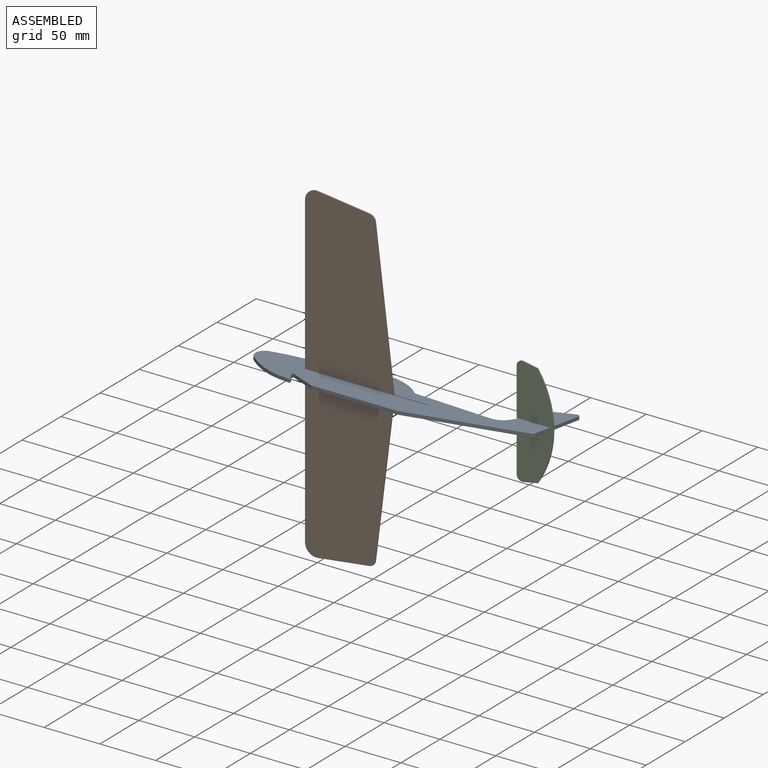
[diagram: assembled view]
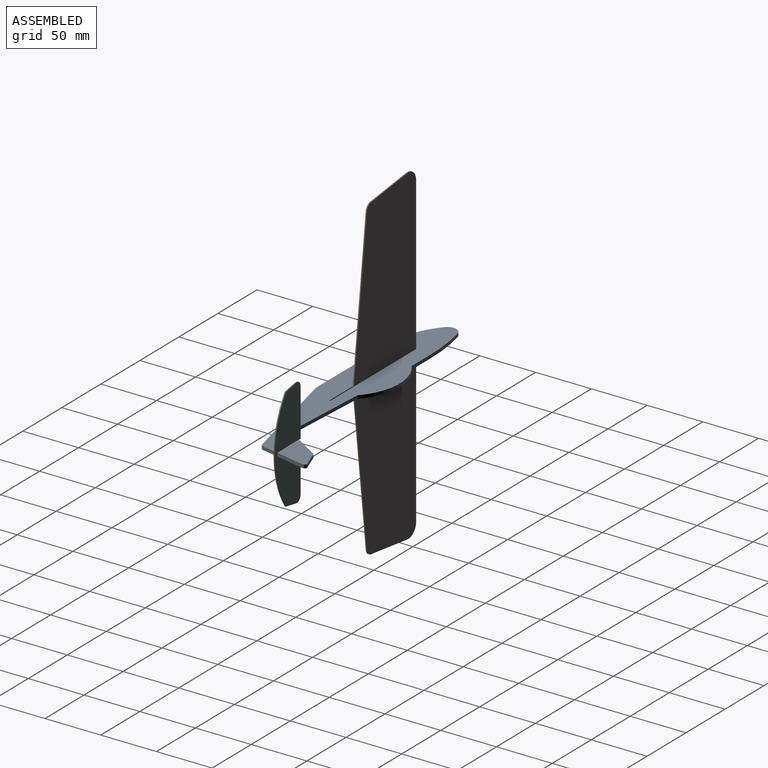
[diagram: assembled view, second angle]
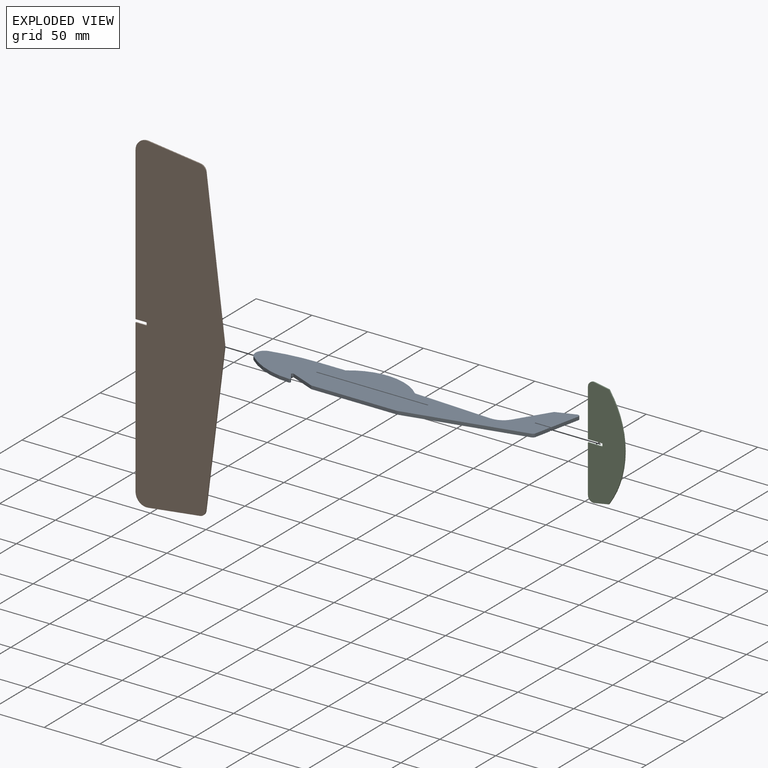
[diagram: exploded view]
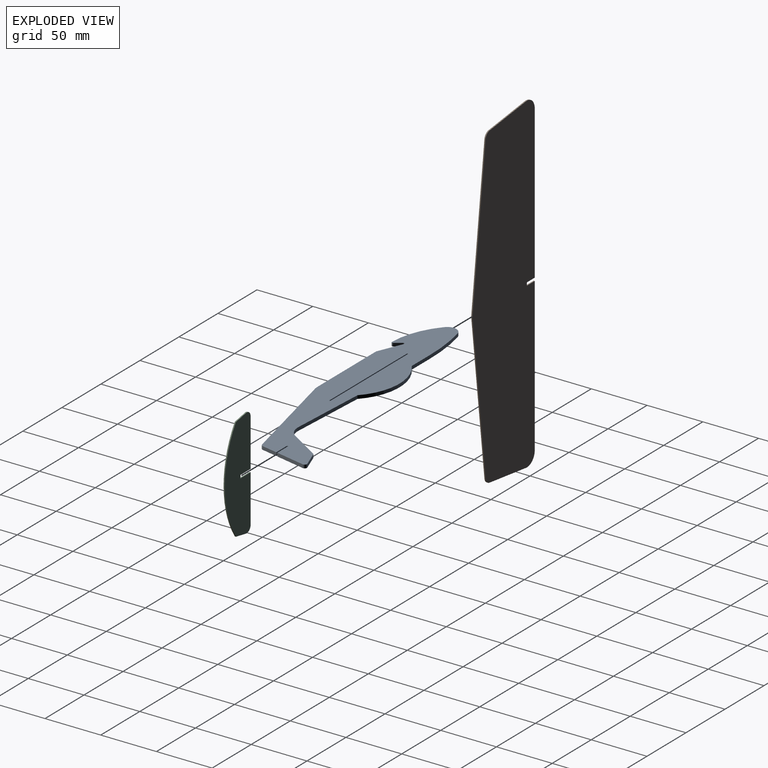
[diagram: exploded view, second angle]
ASSEMBLY  parts=3 mates=2
PART A: 31 faces, bbox 258.1x70.8x3 mm
  f0: plane 100x3mm, normal (0,1,0), area 300mm2, adj f1,f28,f29,f30
  f1: plane 3x1mm, normal (1,0,0), area 3mm2, adj f0,f2,f29,f30
  f2: plane 100x3mm, normal (0,-1,0), area 300mm2, adj f1,f28,f29,f30
  f3: plane 23.92x3mm, normal (0,1,0), area 71.8mm2, adj f4,f27,f29,f30
  f4: cylinder r=175.76mm len=41.76mm, axis (0,0,-1), area 126.4mm2, adj f3,f5,f29,f30
  f5: cylinder r=8.23mm len=14.16mm, axis (0,0,-1), area 53.9mm2, adj f4,f6,f29,f30
  f6: cylinder r=67.7mm len=43.31mm, axis (0,0,-1), area 142.4mm2, adj f5,f7,f29,f30
  f7: cylinder r=1.03mm len=3mm, axis (0,0,-1), area 6.7mm2, adj f6,f8,f29,f30
  f8: plane 6.25x4.21mm, normal (0.83,0.56,0), area 22.6mm2, adj f7,f9,f29,f30
  f9: cylinder r=1.03mm len=3mm, axis (0,0,-1), area 7.9mm2, adj f8,f10,f29,f30
  f10: plane 22.07x9.31mm, normal (-0.39,-0.92,0), area 71.8mm2, adj f9,f11,f29,f30
  f11: cylinder r=1.03mm len=3mm, axis (0,0,-1), area 1.2mm2, adj f10,f12,f29,f30
  f12: plane 75.14x3mm, normal (0,-1,0), area 225.4mm2, adj f11,f13,f29,f30
  f13: cylinder r=15.42mm len=3.5mm, axis (0,0,-1), area 10.6mm2, adj f12,f14,f29,f30
  f14: plane 101.67x23.69mm, normal (0.23,-0.97,0), area 313.2mm2, adj f13,f15,f29,f30
  f15: cylinder r=3.08mm len=3mm, axis (0,0,-1), area 10.5mm2, adj f14,f16,f29,f30
  f16: plane 14.07x3.01mm, normal (0.98,-0.21,0), area 43.2mm2, adj f15,f17,f29,f30
  f17: plane 13.88x3mm, normal (0,1,0), area 41.6mm2, adj f16,f18,f29,f30
  f18: plane 3x1.08mm, normal (1,0,0), area 3.2mm2, adj f17,f19,f29,f30
  f19: plane 14.11x3mm, normal (0,-1,0), area 42.3mm2, adj f18,f20,f29,f30
  f20: plane 26.74x5.73mm, normal (0.98,-0.21,0), area 82mm2, adj f19,f21,f29,f30
  f21: cylinder r=2.06mm len=3mm, axis (0,0,-1), area 13.2mm2, adj f20,f22,f29,f30
  f22: plane 15.87x5.84mm, normal (-0.35,0.94,0), area 50.7mm2, adj f21,f23,f29,f30
  f23: cylinder r=2.06mm len=3mm, axis (0,0,-1), area 4.1mm2, adj f22,f24,f29,f30
  f24: plane 28.07x17.54mm, normal (-0.85,0.53,0), area 99.3mm2, adj f23,f25,f29,f30
  f25: cylinder r=15.42mm len=13.91mm, axis (0,0,-1), area 49.3mm2, adj f24,f26,f29,f30
  f26: plane 70.41x3.79mm, normal (0.05,1,0), area 211.5mm2, adj f25,f27,f29,f30
  f27: cylinder r=49.7mm len=64.61mm, axis (0,0,-1), area 211.4mm2, adj f3,f26,f29,f30
  f28: plane 3x1mm, normal (-1,0,0), area 3mm2, adj f0,f2,f29,f30
  f29: plane 258.13x70.82mm, normal (0,0,1), area 7786.2mm2, adj f0,f1,f2,f3,f4,f5,f6,f7
  f30: plane 258.13x70.82mm, normal (0,0,-1), area 7786.2mm2, adj f0,f1,f2,f3,f4,f5,f6,f7
PART B: 15 faces, bbox 1x297.3x80 mm
  f0: plane 46.6x5.83mm, normal (0,0.99,-0.12), area 47mm2, adj f1,f12,f13,f14
  f1: cylinder r=10mm len=11.24mm, axis (-1,0,0), area 17mm2, adj f0,f2,f13,f14
  f2: plane 137.33x1mm, normal (0,0,1), area 137.3mm2, adj f1,f3,f13,f14
  f3: plane 10x1mm, normal (0,-1,0), area 10mm2, adj f2,f4,f13,f14
  f4: plane 2.68x1mm, normal (0,0,1), area 2.7mm2, adj f3,f5,f13,f14
  f5: plane 10x1mm, normal (0,1,0), area 10mm2, adj f4,f6,f13,f14
  f6: plane 137.33x1mm, normal (0,0,1), area 137.3mm2, adj f5,f7,f13,f14
  f7: cylinder r=10mm len=11.24mm, axis (-1,0,0), area 17mm2, adj f6,f8,f13,f14
  f8: plane 46.6x5.83mm, normal (0,-0.99,-0.12), area 47mm2, adj f7,f9,f13,f14
  f9: cylinder r=6mm len=5.22mm, axis (-1,0,0), area 7.9mm2, adj f8,f10,f13,f14
  f10: plane 137.55x16.95mm, normal (0,-0.12,-0.99), area 138.6mm2, adj f9,f11,f13,f14
  f11: plane 137.55x16.95mm, normal (0,0.12,-0.99), area 138.6mm2, adj f10,f12,f13,f14
  f12: cylinder r=6mm len=5.22mm, axis (-1,0,0), area 7.9mm2, adj f0,f11,f13,f14
  f13: plane 297.34x80mm, normal (1,0,0), area 20655mm2, adj f0,f1,f2,f3,f4,f5,f6,f7
  f14: plane 297.34x80mm, normal (-1,0,0), area 20655mm2, adj f0,f1,f2,f3,f4,f5,f6,f7
PART C: 12 faces, bbox 1x98x33.2 mm
  f0: plane 12.91x2.39mm, normal (0,0.98,-0.18), area 13.1mm2, adj f1,f9,f10,f11
  f1: cylinder r=5mm len=5.91mm, axis (-1,0,0), area 8.8mm2, adj f0,f2,f10,f11
  f2: plane 42.65x1mm, normal (0,0,1), area 42.6mm2, adj f1,f3,f10,f11
  f3: plane 13x1mm, normal (0,-1,0), area 13mm2, adj f2,f4,f10,f11
  f4: plane 2.68x1mm, normal (0,0,1), area 2.7mm2, adj f3,f5,f10,f11
  f5: plane 13x1mm, normal (0,1,0), area 13mm2, adj f4,f6,f10,f11
  f6: plane 42.65x1mm, normal (0,0,1), area 42.6mm2, adj f5,f7,f10,f11
  f7: cylinder r=5mm len=5.91mm, axis (-1,0,0), area 8.8mm2, adj f6,f8,f10,f11
  f8: plane 12.91x2.39mm, normal (0,-0.98,-0.18), area 13.1mm2, adj f7,f9,f10,f11
  f9: cylinder r=82.45mm len=93.03mm, axis (-1,0,0), area 98.8mm2, adj f0,f8,f10,f11
  f10: plane 97.98x33.19mm, normal (1,0,0), area 2673.6mm2, adj f0,f1,f2,f3,f4,f5,f6,f7
  f11: plane 97.98x33.19mm, normal (-1,0,0), area 2673.6mm2, adj f0,f1,f2,f3,f4,f5,f6,f7
PLACE A t=(36.57,-91.95,-3.53)mm
PLACE B rot(axis=(0.58,-0.58,-0.58),120deg) t=(-115.46,-52.94,14.34)mm
PLACE C rot(axis=(-0.58,-0.58,0.58),120deg) t=(124.11,-34.29,136.47)mm
MATE parallel B.f4 <-> A.f1  axis (-1,0,0) through (-98.35,-53.44,-2.03)mm
MATE parallel C.f4 <-> A.f18  axis (-1,0,0) through (80.76,-33.79,-2.03)mm
